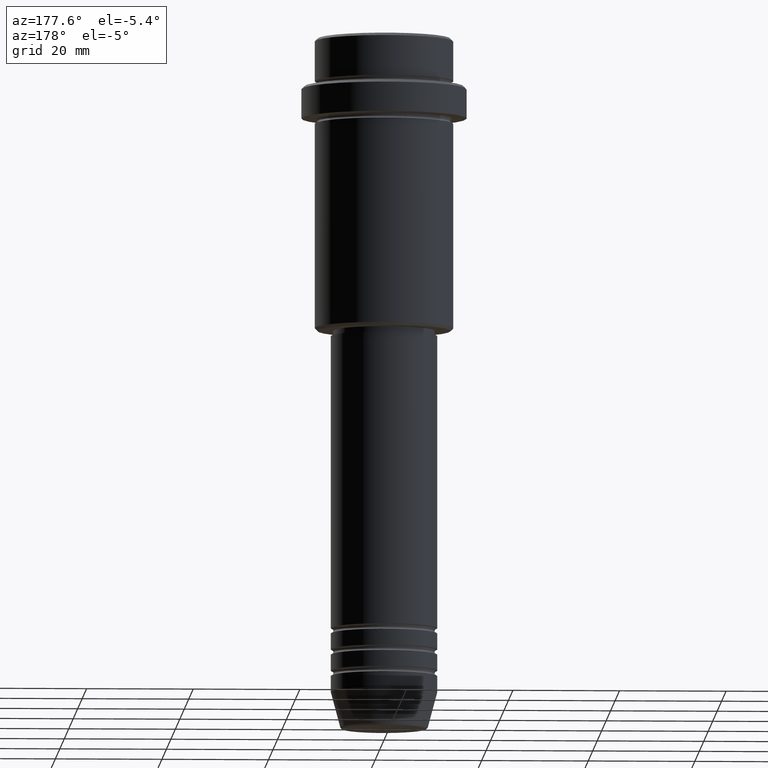
[diagram: clean part render]
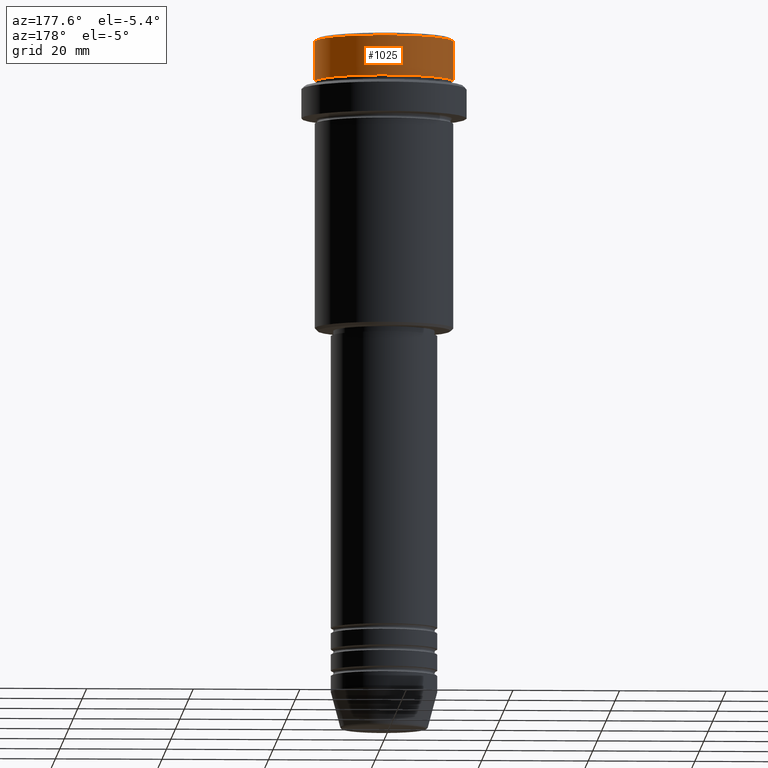
[diagram: same view with one face highlighted and labeled with its STEP entity id]
A machine part, auxiliary view. The second image highlights one B-rep face of the part: STEP entity #1025.
In plain terms, the highlighted cylindrical surface (partial cylindrical patch) has radius 13 mm, axis along (-0, -0, 1).
Its self-contained STEP definition (entity closure, byte-faithful):
#22 = ORIENTED_EDGE ( 'NONE', *, *, #115, .T. ) ;
#57 = CARTESIAN_POINT ( 'NONE',  ( 12.99999999999999822, 0.000000000000000000, -0.4999999999999900080 ) ) ;
#87 = CARTESIAN_POINT ( 'NONE',  ( 0.000000000000000000, 0.000000000000000000, -7.999999999999998224 ) ) ;
#115 = EDGE_CURVE ( 'NONE', #507, #421, #1232, .T. ) ;
#134 = CARTESIAN_POINT ( 'NONE',  ( 12.99999999999999822, 0.000000000000000000, -7.999999999999998224 ) ) ;
#184 = AXIS2_PLACEMENT_3D ( 'NONE', #422, #859, #844 ) ;
#197 = CYLINDRICAL_SURFACE ( 'NONE', #184, 12.99999999999999822 ) ;
#253 = AXIS2_PLACEMENT_3D ( 'NONE', #87, #324, #1069 ) ;
#280 = CARTESIAN_POINT ( 'NONE',  ( -12.99999999999999822, 1.592040838891558898E-15, 0.000000000000000000 ) ) ;
#299 = FACE_OUTER_BOUND ( 'NONE', #731, .T. ) ;
#324 = DIRECTION ( 'NONE',  ( -0.000000000000000000, -0.000000000000000000, 1.000000000000000000 ) ) ;
#421 = VERTEX_POINT ( 'NONE', #57 ) ;
#422 = CARTESIAN_POINT ( 'NONE',  ( 0.000000000000000000, 0.000000000000000000, 0.000000000000000000 ) ) ;
#507 = VERTEX_POINT ( 'NONE', #545 ) ;
#527 = CARTESIAN_POINT ( 'NONE',  ( -12.99999999999999822, 1.592040838891558898E-15, -7.999999999999998224 ) ) ;
#539 = VERTEX_POINT ( 'NONE', #527 ) ;
#545 = CARTESIAN_POINT ( 'NONE',  ( -12.99999999999999822, 1.592040838891558898E-15, -0.4999999999999900080 ) ) ;
#562 = CARTESIAN_POINT ( 'NONE',  ( 0.000000000000000000, 0.000000000000000000, -0.4999999999999900080 ) ) ;
#609 = EDGE_CURVE ( 'NONE', #694, #421, #1206, .T. ) ;
#617 = DIRECTION ( 'NONE',  ( -0.000000000000000000, -0.000000000000000000, 1.000000000000000000 ) ) ;
#631 = CARTESIAN_POINT ( 'NONE',  ( 12.99999999999999822, 0.000000000000000000, 0.000000000000000000 ) ) ;
#694 = VERTEX_POINT ( 'NONE', #134 ) ;
#731 = EDGE_LOOP ( 'NONE', ( #943, #815, #22, #829 ) ) ;
#761 = DIRECTION ( 'NONE',  ( 1.000000000000000000, 0.000000000000000000, 0.000000000000000000 ) ) ;
#815 = ORIENTED_EDGE ( 'NONE', *, *, #891, .T. ) ;
#829 = ORIENTED_EDGE ( 'NONE', *, *, #609, .F. ) ;
#844 = DIRECTION ( 'NONE',  ( 1.000000000000000000, 0.000000000000000000, 0.000000000000000000 ) ) ;
#856 = CIRCLE ( 'NONE', #253, 12.99999999999999822 ) ;
#859 = DIRECTION ( 'NONE',  ( -0.000000000000000000, -0.000000000000000000, 1.000000000000000000 ) ) ;
#882 = VECTOR ( 'NONE', #617, 1000.000000000000000 ) ;
#891 = EDGE_CURVE ( 'NONE', #539, #507, #1047, .T. ) ;
#925 = EDGE_CURVE ( 'NONE', #694, #539, #856, .T. ) ;
#943 = ORIENTED_EDGE ( 'NONE', *, *, #925, .T. ) ;
#1000 = DIRECTION ( 'NONE',  ( 0.000000000000000000, 0.000000000000000000, -1.000000000000000000 ) ) ;
#1025 = ADVANCED_FACE ( 'NONE', ( #299 ), #197, .T. ) ;
#1047 = LINE ( 'NONE', #280, #882 ) ;
#1069 = DIRECTION ( 'NONE',  ( 1.000000000000000000, 0.000000000000000000, 0.000000000000000000 ) ) ;
#1080 = VECTOR ( 'NONE', #1328, 1000.000000000000000 ) ;
#1167 = AXIS2_PLACEMENT_3D ( 'NONE', #562, #1000, #761 ) ;
#1206 = LINE ( 'NONE', #631, #1080 ) ;
#1232 = CIRCLE ( 'NONE', #1167, 12.99999999999999822 ) ;
#1328 = DIRECTION ( 'NONE',  ( -0.000000000000000000, -0.000000000000000000, 1.000000000000000000 ) ) ;